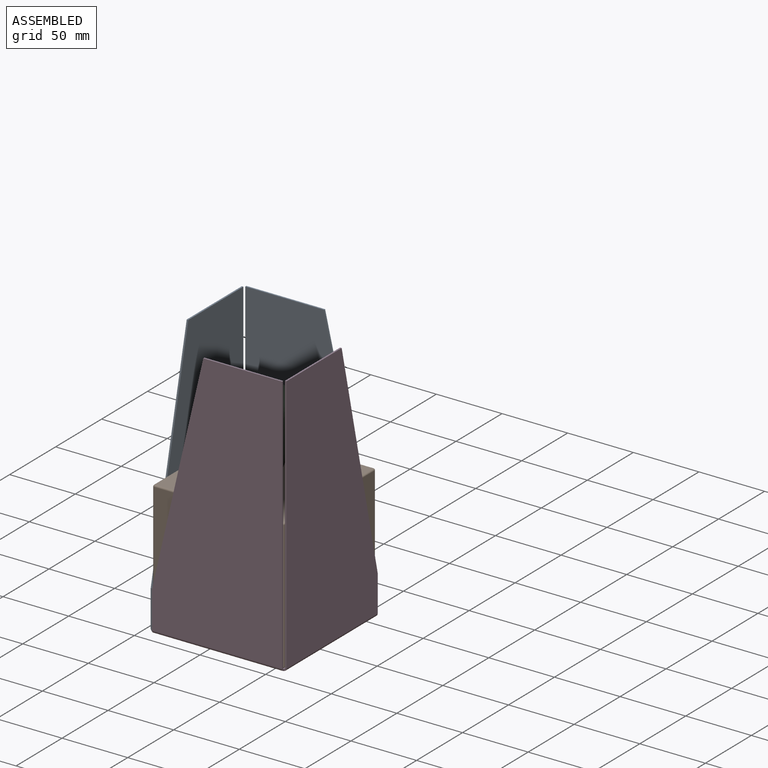
[diagram: assembled view]
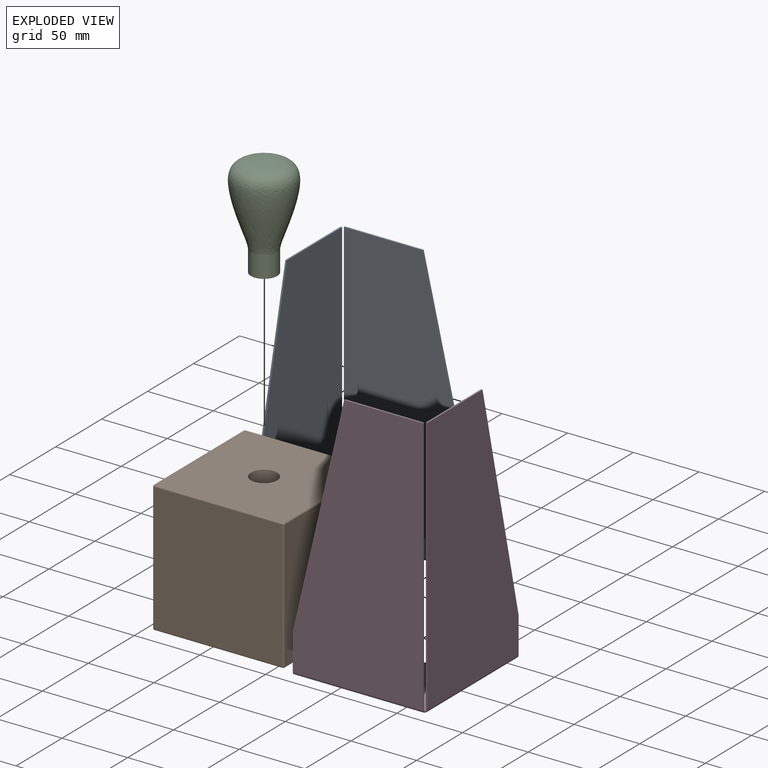
[diagram: exploded view]
GUIDED TOUR — MATED ASSEMBLY (Onshape document 0efe62b1b2ff24ff9a1fd91c, AutoMate assembly 0efe62b1b2ff24ff9a1fd91c_7a273b47fe1183570b5114db_bb7c73932d912f2219df793a_default)

This assembly has 4 components, labeled P0..P3 below (a component is one placed occurrence of a part; the same part can appear more than once), held together by 8 mates. A mate is a constraint between two components; its type names the relative motion it leaves free:
  PLANAR — leaves sliding in the plane through the listed point (normal = the listed direction) and rotation about that normal free,
  SLIDER — leaves translation along the listed axis free.
Axis/direction vectors are unit vectors and 'through' points are millimeter coordinates, both in the assembly's world frame.

MATES
  1. SLIDER "Slider 1": P2 <-> P1, axis (0.000, 0.000, -1.000) through (-138.00, -47.36, 37.06) mm
  2. PLANAR "Planar 7": P3 <-> P1, direction (-1.000, 0.000, 0.000) through (-86.80, -55.64, 36.75) mm
  3. PLANAR "Planar 6": P3 <-> P1, direction (0.000, 1.000, 0.000) through (-129.72, -98.56, 36.75) mm
  4. PLANAR "Planar 3": P0 <-> P1, direction (0.000, -1.000, 0.000) through (-146.09, 3.84, 35.75) mm
  5. PLANAR "Planar 2": P2 <-> P1, direction (0.000, 0.000, -1.000) through (-138.00, -47.36, 45.38) mm
  6. PLANAR "Planar 4": P0 <-> P1, direction (1.000, 0.000, 0.000) through (-189.00, -26.96, 143.18) mm
  7. PLANAR "Planar 1": P0 <-> P1, direction (0.000, 0.000, 1.000) through (-154.87, -30.29, -55.62) mm
  8. PLANAR "Planar 5": P3 <-> P1, direction (0.000, 0.000, 1.000) through (-120.94, -64.43, -54.62) mm

ASSEMBLY ORDER
  1. P1 — the base component [order heuristic]
  2. P0 [order heuristic]
  3. P2 [order heuristic]
  4. P3 [order heuristic]
Order-tag legend:
  [order heuristic] — this assembly is geometrically interlocked (no collision-free removal order exists), so components are listed in mate-graph order; insertion feasibility is not verified.

Of the 4 components, 3 carry the full construction recipe — the FeatureScript program that regenerates the part's solid from scratch; the rest are supplied as boundary geometry only.
Each toured component is shown spotlighted twice — in the assembled view, then in the exploded view, where a leader line traces a displaced component back to its assembled socket (saturated green if recipe-attached, orange if geometry-only; every other component desaturated gray) — followed by its recipe or geometry summary and the mates that hold it.
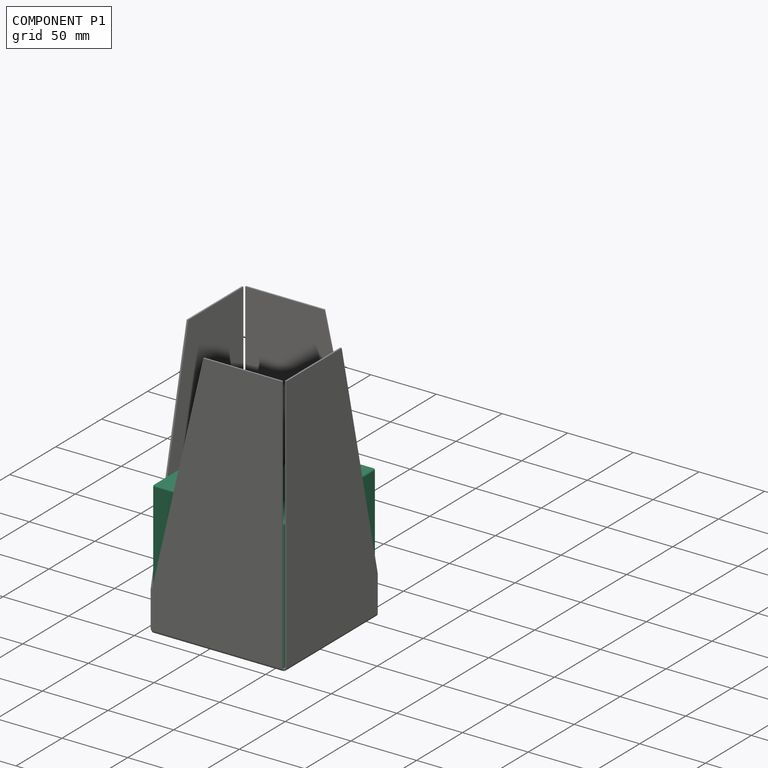
[diagram: component P1 — assembled]
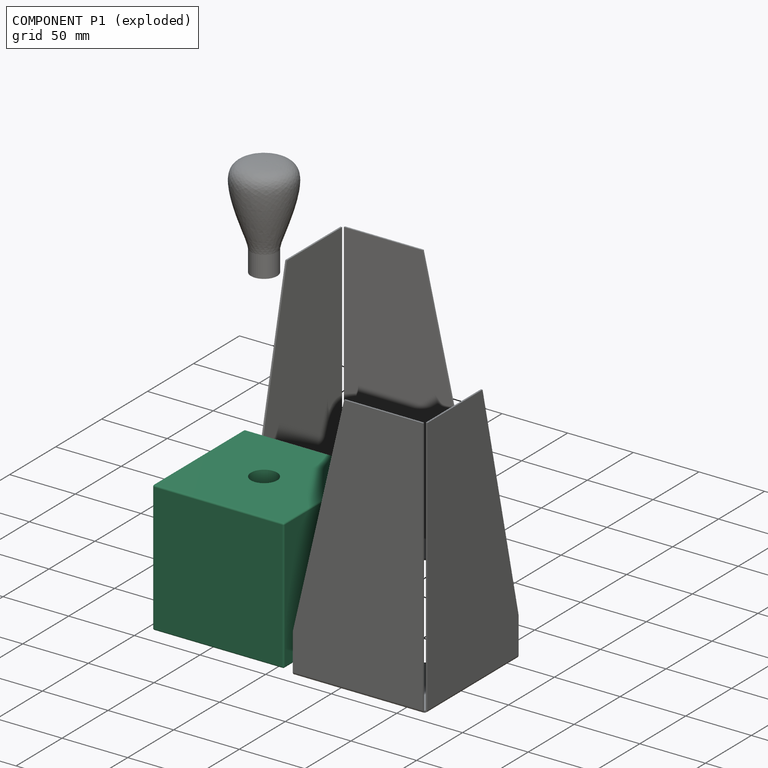
[diagram: component P1 — exploded]
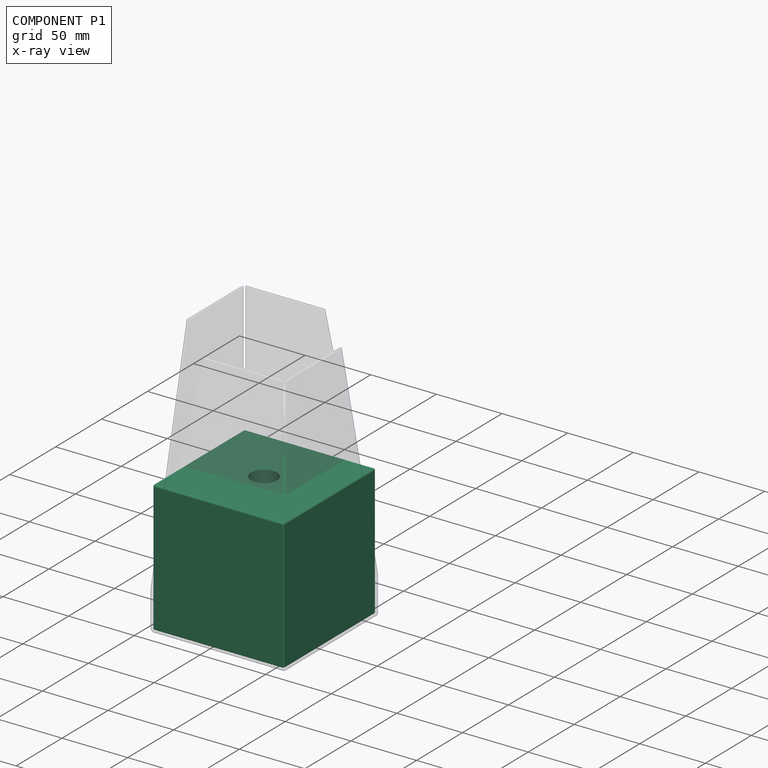
[diagram: component P1 — x-ray view]
COMPONENT P1 — recipe-attached (CADFS 00808531, mesh-verified: the recipe's output STEP matches this component's geometry to below the mesh-comparison resolution (tessellation chordal tolerance ~0.26 mm)).
Held by: SLIDER mate "Slider 1" to P2; PLANAR mate "Planar 7" to P3; PLANAR mate "Planar 6" to P3; PLANAR mate "Planar 3" to P0; PLANAR mate "Planar 2" to P2; PLANAR mate "Planar 4" to P0; PLANAR mate "Planar 1" to P0; PLANAR mate "Planar 5" to P3.
Construction recipe (FeatureScript — the CAD program that rebuilds this solid; sketch coordinates are in the units given by the * unit suffixes, e.g. mm):

FeatureScript 1511;
import(path : "onshape/std/geometry.fs", version : "1511.0");
import(path : "onshape/std/common.fs", version : "1511.0");
const mm = millimeter;
const VERTEX = EntityType.VERTEX;
const EDGE = EntityType.EDGE;
const FACE = EntityType.FACE;
const BODY = EntityType.BODY;
function v(x, y){return vector(x, y);}
function OD(order){return orderDisambiguation(order);}
function OSD(set){return originalSetDisambiguation(set);}
function TD(topology){return topologyDisambiguation(topology);}
function TDD(query){return trueDependencyDisambiguation(query);}
function sQuery(a, b, c) {return sketchEntityQuery(a, b, c);}

annotation { "Feature Type Name" : "Feature", "Feature Type Description" : "" }
export const myFeature = defineFeature(function(context is Context, id is Id, definition is map)
    precondition{}
    {
        {
            var Q0;
            Q0=qCreatedBy(makeId("Top.planeOp"),FACE);
            var sketch = newSketch(context, id + "F0", { "sketchPlane" : qUnion([Q0])});
            skLineSegment(sketch, "E0.bottom", {"start": v(50, -50) * mm, "end": v(-50, -50) * mm});
            skLineSegment(sketch, "E0.top", {"start": v(50, 50) * mm, "end": v(-50, 50) * mm});
            skLineSegment(sketch, "E0.left", {"start": v(50, -50) * mm, "end": v(50, 50) * mm});
            skLineSegment(sketch, "E0.right", {"start": v(-50, -50) * mm, "end": v(-50, 50) * mm});
            skPoint(sketch, "E0.middle", {"position": v(0, 0) * mm});
            skSolve(sketch);
        }
        {
            var Q0;
            Q0 = qSketchRegion(id + "F0", true);
            extrude(context, id + "F1", {"entities" : qUnion([Q0]), "depth" : 100 * mm, "offsetDistance" : 25 * mm});
        }
        {
            var Q0;
            Q0=makeQuery(id+"F1.opExtrude","CAP_FACE",FACE,{"disambiguationData":[OSD([sQuery(id+"F0.wireOp",EDGE,"E0.bottom"),sQuery(id+"F0.wireOp",EDGE,"E0.top"),sQuery(id+"F0.wireOp",EDGE,"E0.left"),sQuery(id+"F0.wireOp",EDGE,"E0.right")])],"isStart":false});
            var sketch = newSketch(context, id + "F2", { "sketchPlane" : qUnion([Q0])});
            skCircle(sketch, "E1", {"center": v(0, 0) * mm, "radius": 10 * mm});
            skSolve(sketch);
        }
        {
            var Q0;
            Q0=makeQuery(id+"F2.imprint","IMPRINT",FACE,{"disambiguationData":[TD([[makeQuery(id+"F2.imprint","IMPRINT",EDGE,{"derivedFrom":sQuery(id+"F2.wireOp",EDGE,"E1")}),1.0]])]});
            extrude(context, id + "F3", {"entities" : qUnion([Q0]), "operationType" : NewBodyOperationType.REMOVE, "oppositeDirection" : true, "depth" : 25 * mm, "offsetDistance" : 25 * mm});
        }
        {
            var Q0;
            Q0=makeQuery(id+"F1.opExtrude","CAP_EDGE",EDGE,{"disambiguationData":[OSD([sQuery(id+"F0.wireOp",EDGE,"E0.right")])],"isStart":false});
            var Q1;
            Q1=makeQuery(id+"F1.opExtrude","CAP_EDGE",EDGE,{"disambiguationData":[OSD([sQuery(id+"F0.wireOp",EDGE,"E0.top")])],"isStart":false});
            var Q2;
            Q2=makeQuery(id+"F1.opExtrude","CAP_EDGE",EDGE,{"disambiguationData":[OSD([sQuery(id+"F0.wireOp",EDGE,"E0.left")])],"isStart":false});
            var Q3;
            Q3=makeQuery(id+"F1.opExtrude","CAP_EDGE",EDGE,{"disambiguationData":[OSD([sQuery(id+"F0.wireOp",EDGE,"E0.bottom")])],"isStart":false});
            var Q4;
            Q4=makeQuery(id+"F1.opExtrude","SWEPT_EDGE",EDGE,{"disambiguationData":[OSD([sQuery(id+"F0.wireOp",EDGE,"E0.bottom"),sQuery(id+"F0.wireOp",EDGE,"E0.right")])]});
            var Q5;
            Q5=makeQuery(id+"F1.opExtrude","SWEPT_EDGE",EDGE,{"disambiguationData":[OSD([sQuery(id+"F0.wireOp",EDGE,"E0.top"),sQuery(id+"F0.wireOp",EDGE,"E0.right")])]});
            var Q6;
            Q6=makeQuery(id+"F1.opExtrude","SWEPT_EDGE",EDGE,{"disambiguationData":[OSD([sQuery(id+"F0.wireOp",EDGE,"E0.bottom"),sQuery(id+"F0.wireOp",EDGE,"E0.left")])]});
            var Q7;
            Q7=makeQuery(id+"F1.opExtrude","SWEPT_EDGE",EDGE,{"disambiguationData":[OSD([sQuery(id+"F0.wireOp",EDGE,"E0.top"),sQuery(id+"F0.wireOp",EDGE,"E0.left")])]});
            var Q8;
            Q8=makeQuery(id+"F1.opExtrude","CAP_EDGE",EDGE,{"disambiguationData":[OSD([sQuery(id+"F0.wireOp",EDGE,"E0.left")])],"isStart":true});
            var Q9;
            Q9=makeQuery(id+"F1.opExtrude","CAP_EDGE",EDGE,{"disambiguationData":[OSD([sQuery(id+"F0.wireOp",EDGE,"E0.bottom")])],"isStart":true});
            var Q10;
            Q10=makeQuery(id+"F1.opExtrude","CAP_EDGE",EDGE,{"disambiguationData":[OSD([sQuery(id+"F0.wireOp",EDGE,"E0.right")])],"isStart":true});
            var Q11;
            Q11=makeQuery(id+"F1.opExtrude","CAP_EDGE",EDGE,{"disambiguationData":[OSD([sQuery(id+"F0.wireOp",EDGE,"E0.top")])],"isStart":true});
            fillet(context, id + "F4", {"entities" : qUnion([Q0, Q1, Q2, Q3, Q4, Q5, Q6, Q7, Q8, Q9, Q10, Q11]), "radius" : 1.2 * mm, "tangentPropagation" : true, "allowEdgeOverflow" : false});
        }
    });
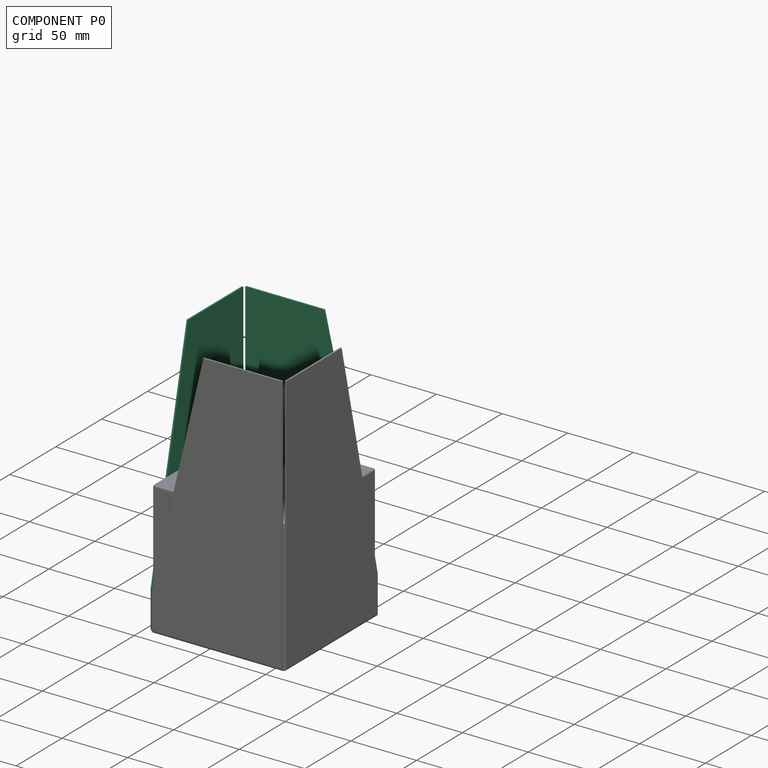
[diagram: component P0 — assembled]
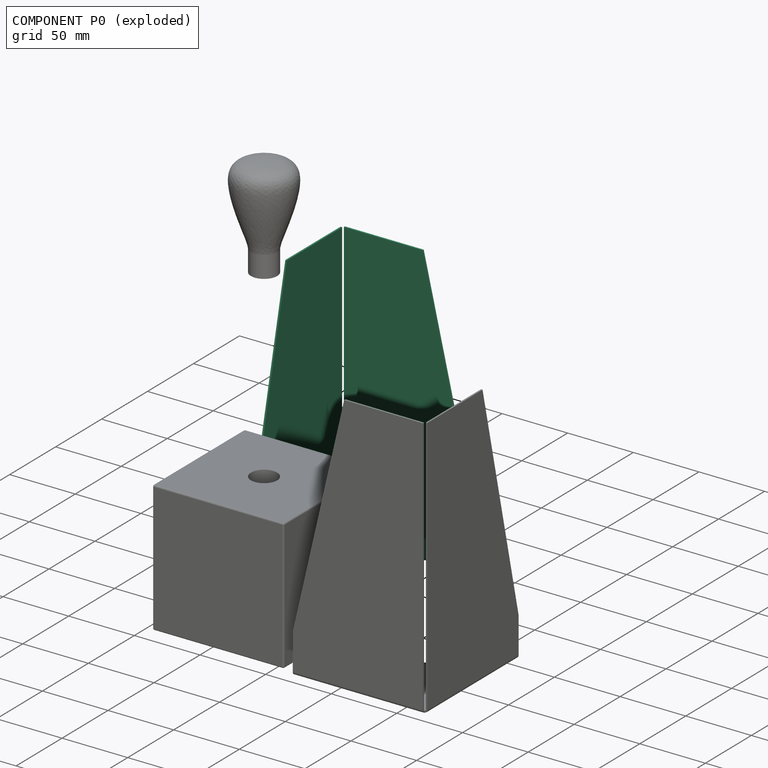
[diagram: component P0 — exploded]
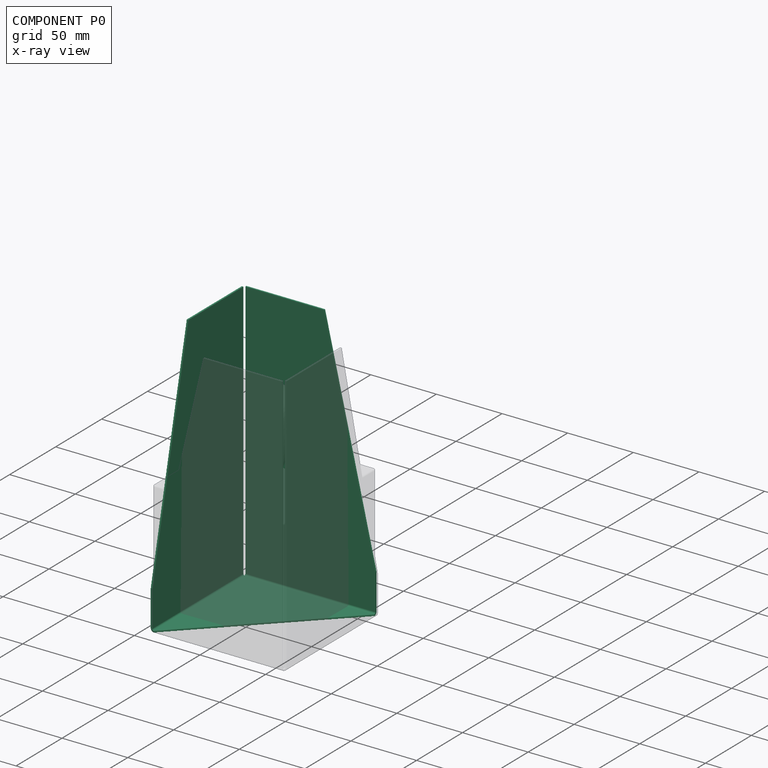
[diagram: component P0 — x-ray view]
COMPONENT P0 — recipe-attached (CADFS 00808533, mesh-verified: the recipe's output STEP matches this component's geometry to below the mesh-comparison resolution (tessellation chordal tolerance ~0.369 mm)).
Held by: PLANAR mate "Planar 3" to P1; PLANAR mate "Planar 4" to P1; PLANAR mate "Planar 1" to P1.
Construction recipe (FeatureScript — the CAD program that rebuilds this solid; sketch coordinates are in the units given by the * unit suffixes, e.g. mm):

FeatureScript 1511;
import(path : "onshape/std/geometry.fs", version : "1511.0");
import(path : "onshape/std/common.fs", version : "1511.0");
const mm = millimeter;
const VERTEX = EntityType.VERTEX;
const EDGE = EntityType.EDGE;
const FACE = EntityType.FACE;
const BODY = EntityType.BODY;
function v(x, y){return vector(x, y);}
function OD(order){return orderDisambiguation(order);}
function OSD(set){return originalSetDisambiguation(set);}
function TD(topology){return topologyDisambiguation(topology);}
function TDD(query){return trueDependencyDisambiguation(query);}
function sQuery(a, b, c) {return sketchEntityQuery(a, b, c);}

annotation { "Feature Type Name" : "Feature", "Feature Type Description" : "" }
export const myFeature = defineFeature(function(context is Context, id is Id, definition is map)
    precondition{}
    {
        {
            var Q0;
            Q0=qCreatedBy(makeId("Top.planeOp"),FACE);
            var sketch = newSketch(context, id + "F0", { "sketchPlane" : qUnion([Q0])});
            skLineSegment(sketch, "E0.bottom", {"start": v(50.6, -50.6) * mm, "end": v(-50.6, -50.6) * mm});
            skLineSegment(sketch, "E0.top", {"start": v(50.6, 50.6) * mm, "end": v(-50.6, 50.6) * mm});
            skLineSegment(sketch, "E0.left", {"start": v(50.6, -50.6) * mm, "end": v(50.6, 50.6) * mm});
            skLineSegment(sketch, "E0.right", {"start": v(-50.6, -50.6) * mm, "end": v(-50.6, 50.6) * mm});
            skPoint(sketch, "E0.middle", {"position": v(0, 0) * mm});
            skSolve(sketch);
        }
        {
            var Q0;
            Q0 = qSketchRegion(id + "F0", true);
            extrude(context, id + "F1", {"entities" : qUnion([Q0]), "depth" : 200 * mm, "offsetDistance" : 25 * mm});
        }
        {
            var Q0;
            Q0=makeQuery(id+"F1.opExtrude","CAP_FACE",FACE,{"disambiguationData":[OSD([sQuery(id+"F0.wireOp",EDGE,"E0.bottom"),sQuery(id+"F0.wireOp",EDGE,"E0.top"),sQuery(id+"F0.wireOp",EDGE,"E0.left"),sQuery(id+"F0.wireOp",EDGE,"E0.right")])],"isStart":false});
            var Q1;
            Q1=makeQuery(id+"F1.opExtrude","SWEPT_FACE",FACE,{"disambiguationData":[OSD([sQuery(id+"F0.wireOp",EDGE,"E0.bottom")])]});
            var Q2;
            Q2=makeQuery(id+"F1.opExtrude","SWEPT_FACE",FACE,{"disambiguationData":[OSD([sQuery(id+"F0.wireOp",EDGE,"E0.left")])]});
            shell(context, id + "F2", {"entities" : qUnion([Q0, Q1, Q2]), "thickness" : 1.2 * mm});
        }
        {
            var Q0;
            Q0=makeQuery(id+"F1.opExtrude","CAP_FACE",FACE,{"disambiguationData":[OSD([sQuery(id+"F0.wireOp",EDGE,"E0.bottom"),sQuery(id+"F0.wireOp",EDGE,"E0.top"),sQuery(id+"F0.wireOp",EDGE,"E0.left"),sQuery(id+"F0.wireOp",EDGE,"E0.right")])],"isStart":true});
            var sketch = newSketch(context, id + "F3", { "sketchPlane" : qUnion([Q0])});
            skLineSegment(sketch, "E1.bottom", {"start": v(-50.6, -50.6) * mm, "end": v(-49.4, -50.6) * mm});
            skLineSegment(sketch, "E1.top", {"start": v(-50.6, -49.4) * mm, "end": v(-49.4, -49.4) * mm});
            skLineSegment(sketch, "E1.left", {"start": v(-50.6, -50.6) * mm, "end": v(-50.6, -49.4) * mm});
            skLineSegment(sketch, "E1.right", {"start": v(-49.4, -50.6) * mm, "end": v(-49.4, -49.4) * mm});
            skSolve(sketch);
        }
        {
            var Q0;
            Q0=makeQuery(id+"F1.opExtrude","CAP_FACE",FACE,{"disambiguationData":[OSD([sQuery(id+"F0.wireOp",EDGE,"E0.bottom"),sQuery(id+"F0.wireOp",EDGE,"E0.top"),sQuery(id+"F0.wireOp",EDGE,"E0.left"),sQuery(id+"F0.wireOp",EDGE,"E0.right")])],"isStart":false});
            var sketch = newSketch(context, id + "F4", { "sketchPlane" : qUnion([Q0])});
            skLineSegment(sketch, "E2", {"start": v(-50.6, 48.6) * mm, "end": v(-50.6, 50.6) * mm});
            skLineSegment(sketch, "E3", {"start": v(-50.6, 50.6) * mm, "end": v(-48.6, 50.6) * mm});
            skLineSegment(sketch, "E4", {"start": v(-50.6, 48.6) * mm, "end": v(-48.6, 48.6) * mm});
            skLineSegment(sketch, "E5", {"start": v(-48.6, 48.6) * mm, "end": v(-48.6, 50.6) * mm});
            skSolve(sketch);
        }
        {
            var Q0;
            {var subQ0=sQuery(id+"F4.wireOp",EDGE,"E5");var subQ1=sQuery(id+"F4.wireOp",EDGE,"E4");var subQ2=makeQuery(id+"F4.imprint","INTERSECT",VERTEX,{"derivedFrom":[subQ1,subQ0]});Q0=makeQuery(id+"F4.imprint","IMPRINT",FACE,{"disambiguationData":[TD([[makeQuery(id+"F4.imprint","IMPRINT",EDGE,{"disambiguationData":[TD([[subQ2,1.0]])],"derivedFrom":subQ1}),1.0]])]});}
            var Q1;
            {var subQ1=sQuery(id+"F4.wireOp",EDGE,"E2");Q1=makeQuery(id+"F4.imprint","IMPRINT",FACE,{"disambiguationData":[TD([[makeQuery(id+"F4.imprint","IMPRINT",EDGE,{"derivedFrom":subQ1}),-1.0]])]});}
            extrude(context, id + "F5", {"entities" : qUnion([Q0, Q1]), "operationType" : NewBodyOperationType.REMOVE, "endBound" : BoundingType.THROUGH_ALL, "oppositeDirection" : true, "depth" : 25 * mm, "offsetDistance" : 25 * mm});
        }
        {
            var Q0;
            {var subQ0=sQuery(id+"F0.wireOp",EDGE,"E0.top");Q0=makeQuery(id+"F2.opShell","OFFSET_EDGE",EDGE,{"disambiguationData":[OSD([subQ0]),TDD([makeQuery(id+"F1.opExtrude","CAP_EDGE",EDGE,{"disambiguationData":[OSD([subQ0])],"isStart":true})])]});}
            fillet(context, id + "F6", {"entities" : qUnion([Q0]), "radius" : 1.2 * mm, "allowEdgeOverflow" : false});
        }
        {
            var Q0;
            {var subQ0=sQuery(id+"F0.wireOp",EDGE,"E0.right");Q0=makeQuery(id+"F2.opShell","OFFSET_EDGE",EDGE,{"disambiguationData":[OSD([subQ0]),TDD([makeQuery(id+"F1.opExtrude","CAP_EDGE",EDGE,{"disambiguationData":[OSD([subQ0])],"isStart":true})])]});}
            fillet(context, id + "F7", {"entities" : qUnion([Q0]), "radius" : 1.2 * mm, "tangentPropagation" : true, "allowEdgeOverflow" : false});
        }
        {
            var Q0;
            Q0=makeQuery(id+"F1.opExtrude","CAP_EDGE",EDGE,{"disambiguationData":[OSD([sQuery(id+"F0.wireOp",EDGE,"E0.right")])],"isStart":true});
            fillet(context, id + "F8", {"entities" : qUnion([Q0]), "radius" : 2.4 * mm, "tangentPropagation" : true, "allowEdgeOverflow" : false});
        }
        {
            var Q0;
            Q0=makeQuery(id+"F1.opExtrude","CAP_EDGE",EDGE,{"disambiguationData":[OSD([sQuery(id+"F0.wireOp",EDGE,"E0.top")])],"isStart":true});
            fillet(context, id + "F9", {"entities" : qUnion([Q0]), "radius" : 2.4 * mm, "tangentPropagation" : true, "allowEdgeOverflow" : false});
        }
        {
            var Q0;
            Q0=makeQuery(id+"F1.opExtrude","SWEPT_FACE",FACE,{"disambiguationData":[OSD([sQuery(id+"F0.wireOp",EDGE,"E0.right")])]});
            var sketch = newSketch(context, id + "F10", { "sketchPlane" : qUnion([Q0])});
            skLineSegment(sketch, "E6", {"start": v(50.6, 200) * mm, "end": v(50.6, 30) * mm});
            skLineSegment(sketch, "E7", {"start": v(50.6, 30) * mm, "end": v(11.4, 200) * mm});
            skLineSegment(sketch, "E8", {"start": v(11.4, 200) * mm, "end": v(50.6, 200) * mm});
            skSolve(sketch);
        }
        {
            var Q0;
            Q0=makeQuery(id+"F1.opExtrude","SWEPT_FACE",FACE,{"disambiguationData":[OSD([sQuery(id+"F0.wireOp",EDGE,"E0.top")])]});
            var sketch = newSketch(context, id + "F11", { "sketchPlane" : qUnion([Q0])});
            skLineSegment(sketch, "E9", {"start": v(-50.6, 200) * mm, "end": v(-11.4, 200) * mm});
            skLineSegment(sketch, "E10", {"start": v(-11.4, 200) * mm, "end": v(-50.6, 30) * mm});
            skLineSegment(sketch, "E11", {"start": v(-50.6, 30) * mm, "end": v(-50.6, 200) * mm});
            skSolve(sketch);
        }
        {
            var Q0;
            Q0=makeQuery(id+"F11.imprint","IMPRINT",FACE,{"disambiguationData":[TD([[makeQuery(id+"F11.imprint","IMPRINT",EDGE,{"derivedFrom":sQuery(id+"F11.wireOp",EDGE,"E9")}),-1.0]])]});
            extrude(context, id + "F12", {"entities" : qUnion([Q0]), "operationType" : NewBodyOperationType.REMOVE, "oppositeDirection" : true, "depth" : 25 * mm, "offsetDistance" : 25 * mm});
        }
        {
            var Q0;
            Q0 = qSketchRegion(id + "F10", true);
            extrude(context, id + "F13", {"entities" : qUnion([Q0]), "operationType" : NewBodyOperationType.REMOVE, "oppositeDirection" : true, "depth" : 25 * mm, "offsetDistance" : 25 * mm});
        }
        {
            var Q0;
            {var subQ4=sQuery(id+"F3.wireOp",EDGE,"E1.top");Q0=makeQuery(id+"F3.imprint","IMPRINT",FACE,{"disambiguationData":[TD([[makeQuery(id+"F3.imprint","IMPRINT",EDGE,{"derivedFrom":subQ4}),1.0]])]});}
            var sketch = newSketch(context, id + "F14", { "sketchPlane" : qUnion([Q0])});
            skLineSegment(sketch, "E12.0", {"start": v(50.6, 50.6) * mm, "end": v(-48.2, 50.6) * mm});
            skLineSegment(sketch, "E13.0", {"start": v(50.6, 50.6) * mm, "end": v(50.6, -48.2) * mm});
            skLineSegment(sketch, "E14", {"start": v(-48.2, 50.6) * mm, "end": v(50.6, -48.2) * mm});
            skSolve(sketch);
        }
        {
            var Q0;
            Q0 = qSketchRegion(id + "F14", true);
            extrude(context, id + "F15", {"entities" : qUnion([Q0]), "operationType" : NewBodyOperationType.REMOVE, "oppositeDirection" : true, "depth" : 25 * mm, "offsetDistance" : 25 * mm});
        }
    });
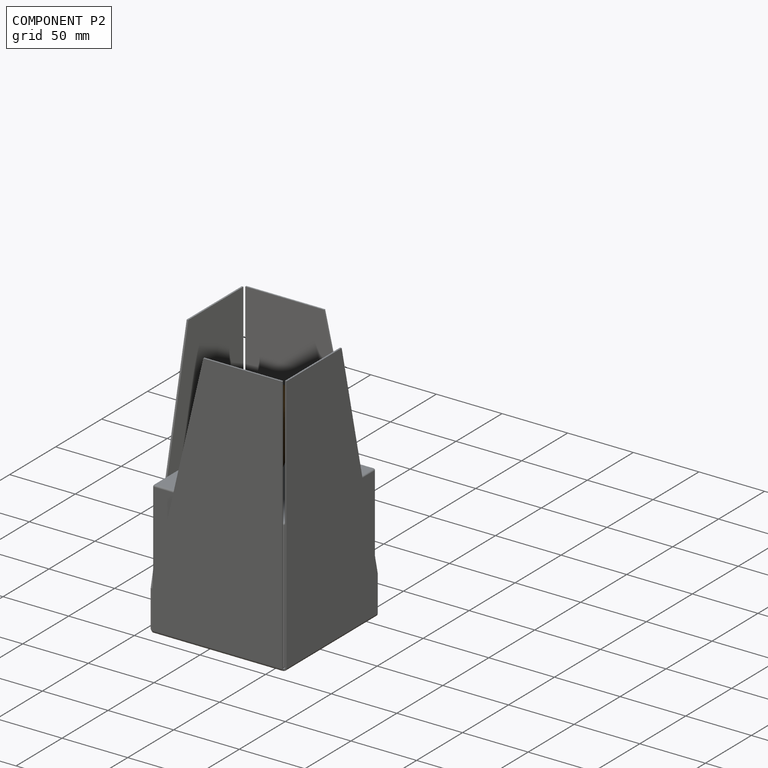
[diagram: component P2 — assembled]
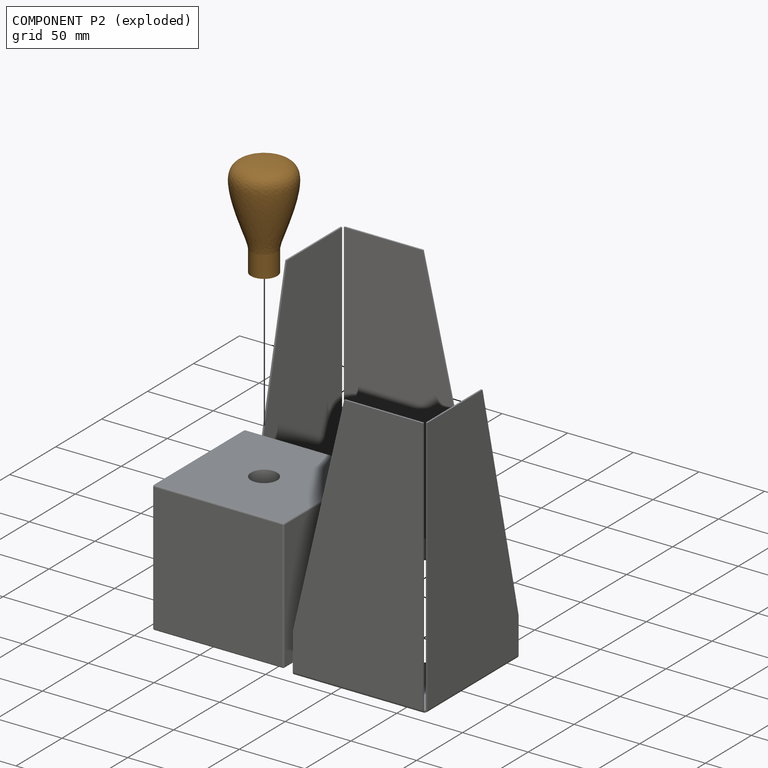
[diagram: component P2 — exploded]
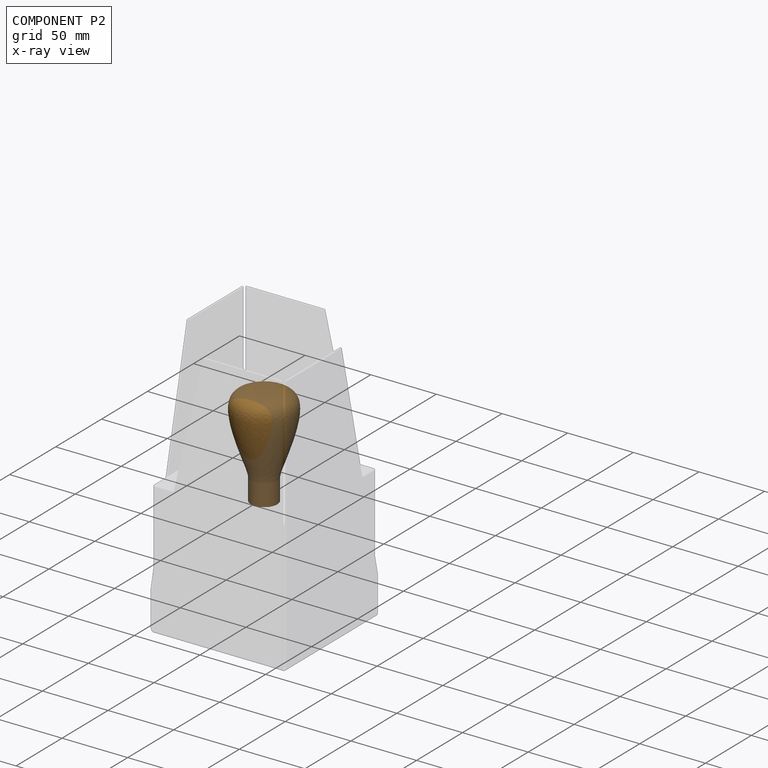
[diagram: component P2 — x-ray view]
COMPONENT P2 — geometry summary (no construction recipe available for this part):
  bounding box: 76.6 x 45.2 x 45.2 mm
  B-rep topology: 1 solid, 3 faces, 11 edges
  volume: 67731 mm^3 (43% of its bounding box)
  symmetry: revolution-symmetric about the z axis through its bounding-box center; mirror-symmetric across its x mid-plane, y mid-plane
Held by: SLIDER mate "Slider 1" to P1; PLANAR mate "Planar 2" to P1.
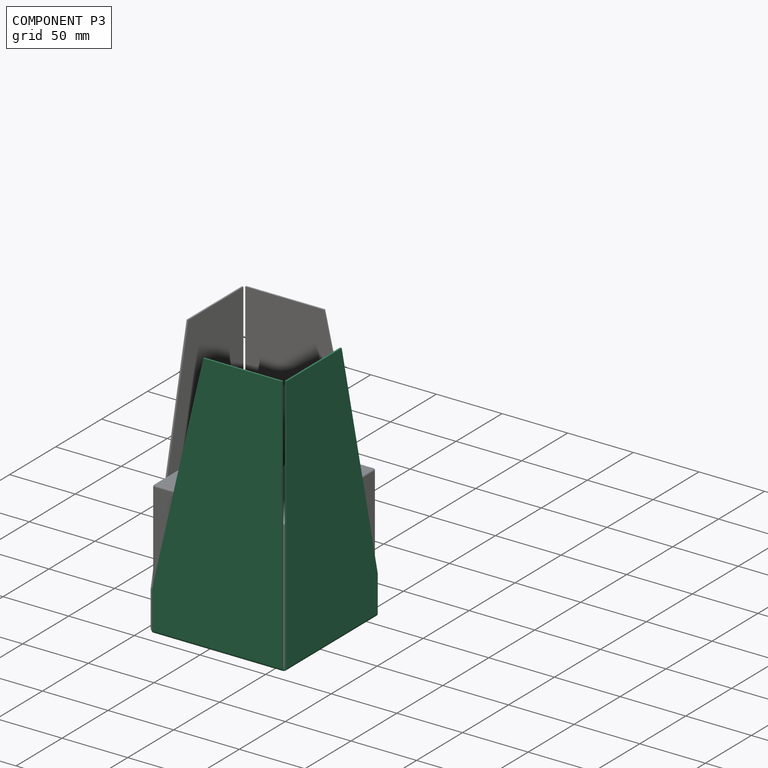
[diagram: component P3 — assembled]
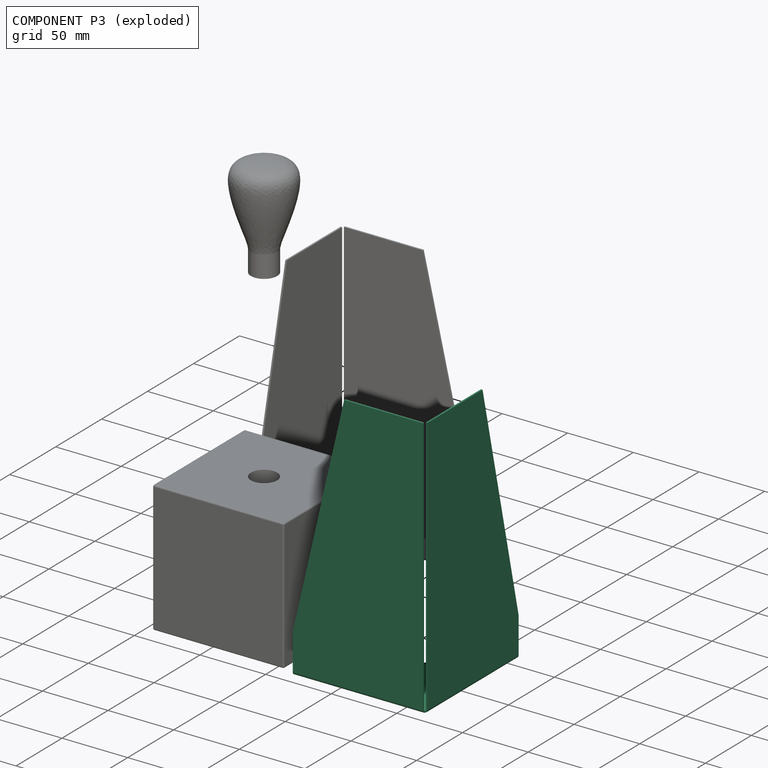
[diagram: component P3 — exploded]
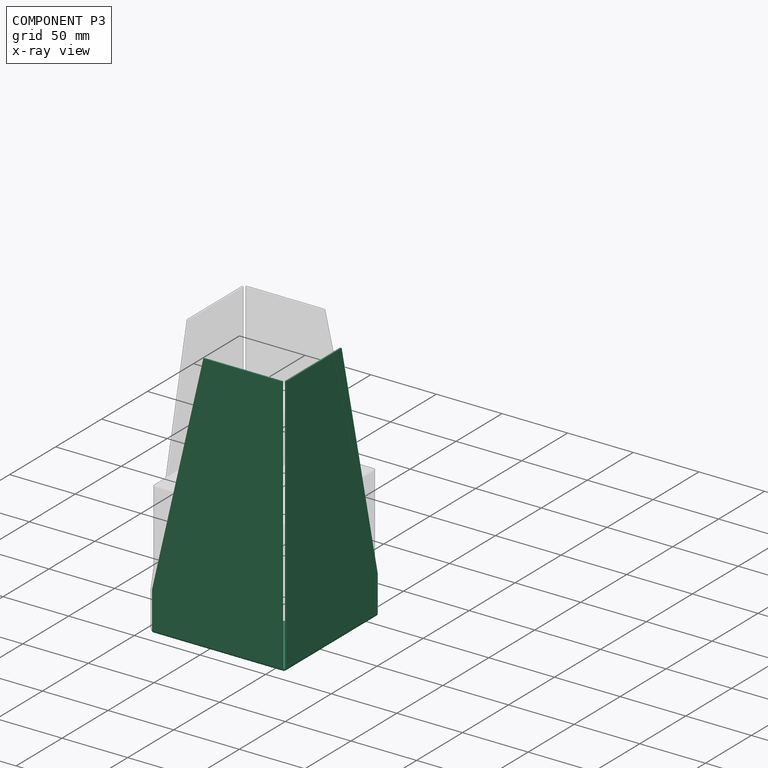
[diagram: component P3 — x-ray view]
COMPONENT P3 — same part as P0 (CADFS 00808533); its construction recipe is shown at P0.
Held by: PLANAR mate "Planar 7" to P1; PLANAR mate "Planar 6" to P1; PLANAR mate "Planar 5" to P1.
PROVENANCE & LICENSES
Assembly (occurrences, transforms, mates, per-part STEP geometry): AutoMate dataset, Zenodo record 7776208, CC0.
Construction recipes: CADFS (HuggingFace VladPyatov/CADFS, CC-BY-4.0, layered over the ABC dataset), FeatureScript reconstruction programs keyed by ABC model id.
Join: ABC meta listings map ABC model id -> Onshape documentId; within a shared document, parts are matched by geometric signature (bounding-box dims + volume at 0.1% relative tolerance, exact B-rep face/solid counts).
Verification: 3 of this assembly's 4 components carry a recipe attachment, and every attachment is mesh-verified: the CADFS STEP and the AutoMate member STEP were compared as meshes in their shared local frame (symmetric sampled-point-to-mesh distance); worst across the 3 attachments: below the mesh-comparison resolution (tessellation chordal tolerance ~0.369 mm) on a 246 mm part.
Renders: orthographic iso camera (az 35 / el 25); the floor grid conveys scale (grid pitch printed in each image; no ruler). In the exploded view each component is displaced by its stored offset vector: the offsets alone carry the explosion direction (mate normal/axis signs are not orientation cues and do not encode it), and separation distances are assigned per mate-chain, not proportionally to assembly-order depth.
